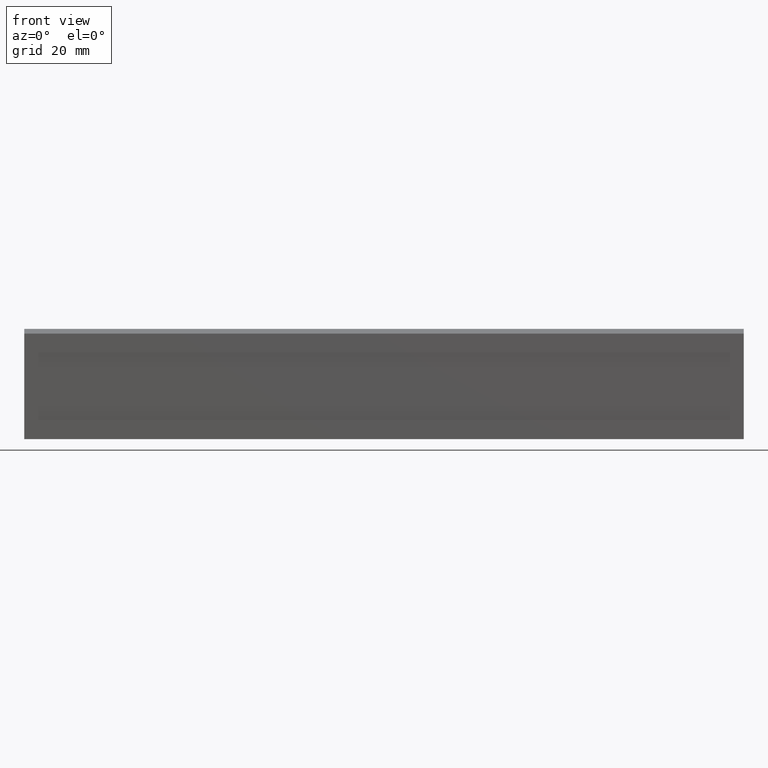
[diagram: clean part render]
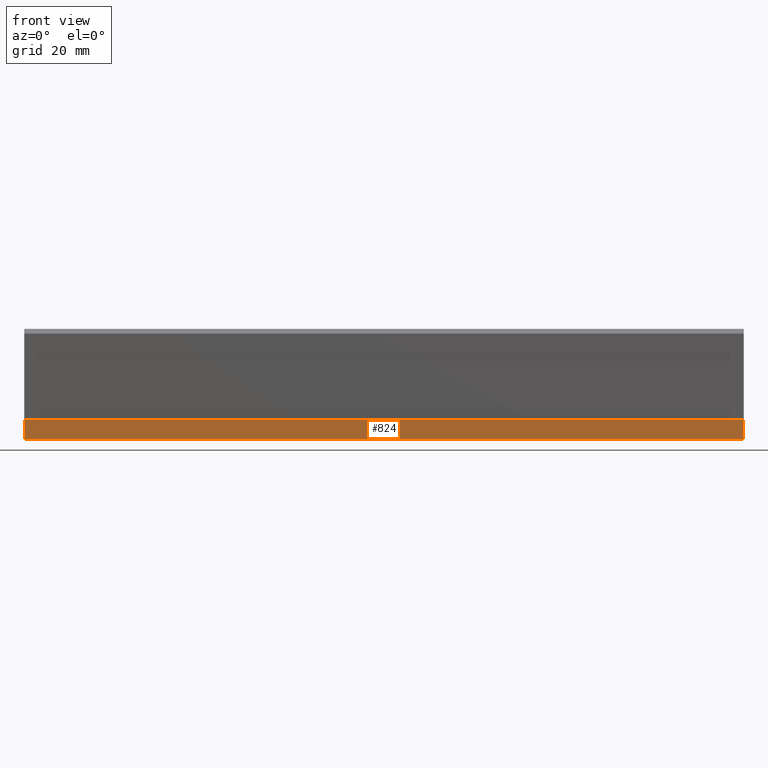
[diagram: same view with one face highlighted and labeled with its STEP entity id]
A machine part, front view. The second image highlights one B-rep face of the part: STEP entity #824.
In plain terms, the highlighted face is a freeform B-spline surface patch.
Its self-contained STEP definition (entity closure, byte-faithful):
#512=CARTESIAN_POINT('',(0.0,-15.0,-23.0));
#513=VERTEX_POINT('',#512);
#519=CARTESIAN_POINT('',(0.0,-15.0,-19.0));
#520=VERTEX_POINT('',#519);
#521=CARTESIAN_POINT('',(0.0,-15.0,-19.0));
#522=CARTESIAN_POINT('',(0.0,-15.0,-23.0));
#523=QUASI_UNIFORM_CURVE('',1,(#521,#522),.UNSPECIFIED.,.F.,.U.);
#524=EDGE_CURVE('',#520,#513,#523,.T.);
#576=CARTESIAN_POINT('',(150.0,-15.0,-19.0));
#577=VERTEX_POINT('',#576);
#583=CARTESIAN_POINT('',(150.0,-15.0,-23.0));
#584=VERTEX_POINT('',#583);
#585=CARTESIAN_POINT('',(150.0,-15.0,-19.0));
#586=CARTESIAN_POINT('',(150.0,-15.0,-23.0));
#587=QUASI_UNIFORM_CURVE('',1,(#585,#586),.UNSPECIFIED.,.F.,.U.);
#588=EDGE_CURVE('',#577,#584,#587,.T.);
#801=CARTESIAN_POINT('',(150.0,-15.0,-23.0));
#802=CARTESIAN_POINT('',(0.0,-15.0,-23.0));
#803=QUASI_UNIFORM_CURVE('',1,(#801,#802),.UNSPECIFIED.,.F.,.U.);
#804=EDGE_CURVE('',#584,#513,#803,.T.);
#809=CARTESIAN_POINT('',(-7.492499709270897,-15.0,-23.199799992247229));
#810=CARTESIAN_POINT('',(-7.492499709270897,-15.0,-18.800199900464420));
#811=CARTESIAN_POINT('',(157.492503732584400,-15.0,-23.199799992247229));
#812=CARTESIAN_POINT('',(157.492503732584400,-15.0,-18.800199900464420));
#813=B_SPLINE_SURFACE_WITH_KNOTS('',1,1,((#809,#811),(#810,#812)),.UNSPECIFIED.,.F.,.F.,.U.,(2,2),(2,2),(0.0,4.399600091782812),(0.0,164.985003441855300),.UNSPECIFIED.);
#814=ORIENTED_EDGE('',*,*,#524,.T.);
#815=ORIENTED_EDGE('',*,*,#804,.F.);
#816=ORIENTED_EDGE('',*,*,#588,.F.);
#817=CARTESIAN_POINT('',(150.0,-15.0,-19.0));
#818=CARTESIAN_POINT('',(0.0,-15.0,-19.0));
#819=QUASI_UNIFORM_CURVE('',1,(#817,#818),.UNSPECIFIED.,.F.,.U.);
#820=EDGE_CURVE('',#577,#520,#819,.T.);
#821=ORIENTED_EDGE('',*,*,#820,.T.);
#822=EDGE_LOOP('',(#814,#815,#816,#821));
#823=FACE_OUTER_BOUND('',#822,.T.);
#824=ADVANCED_FACE('',(#823),#813,.F.);